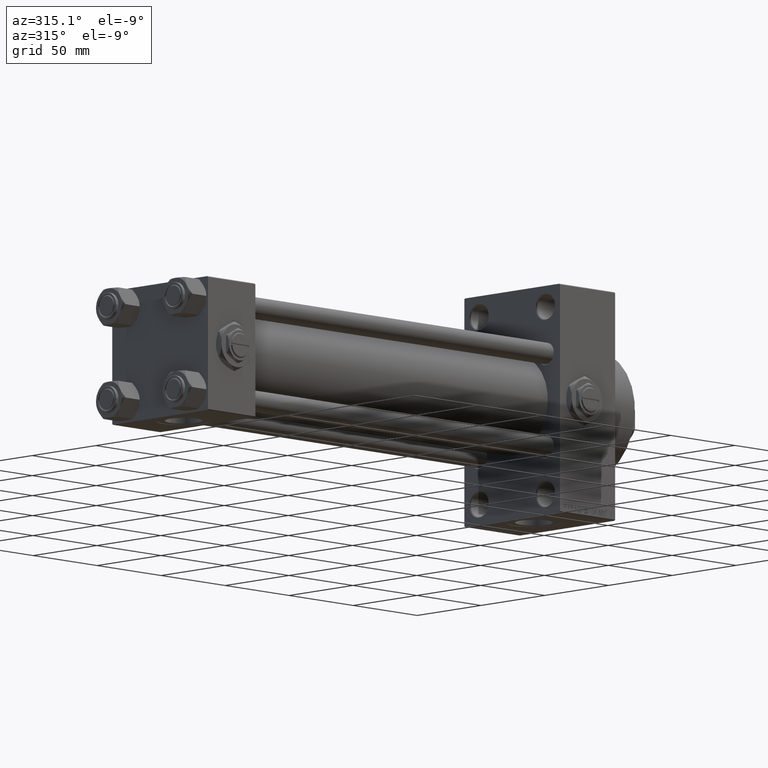
[diagram: clean part render]
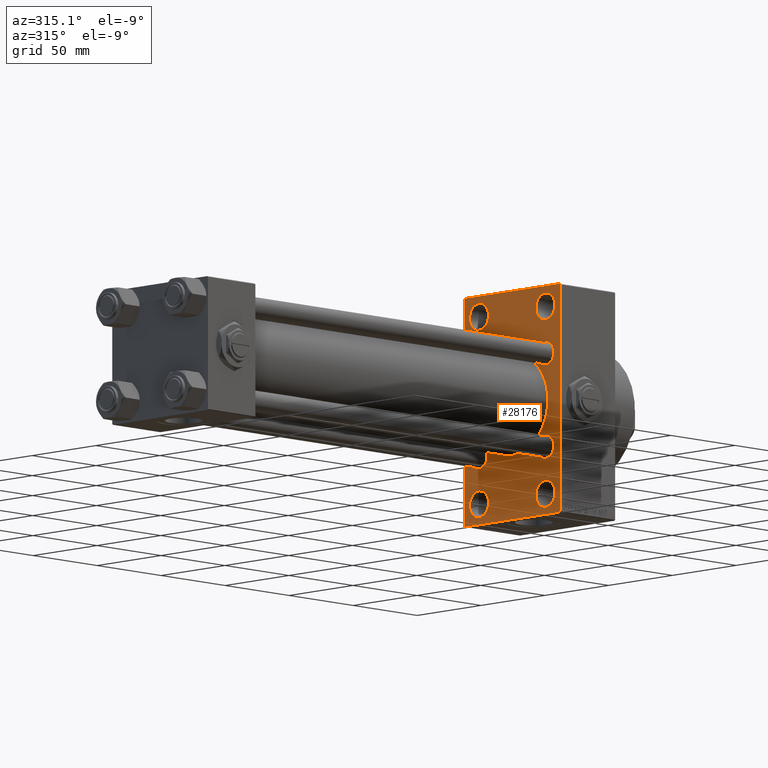
[diagram: same view with one face highlighted and labeled with its STEP entity id]
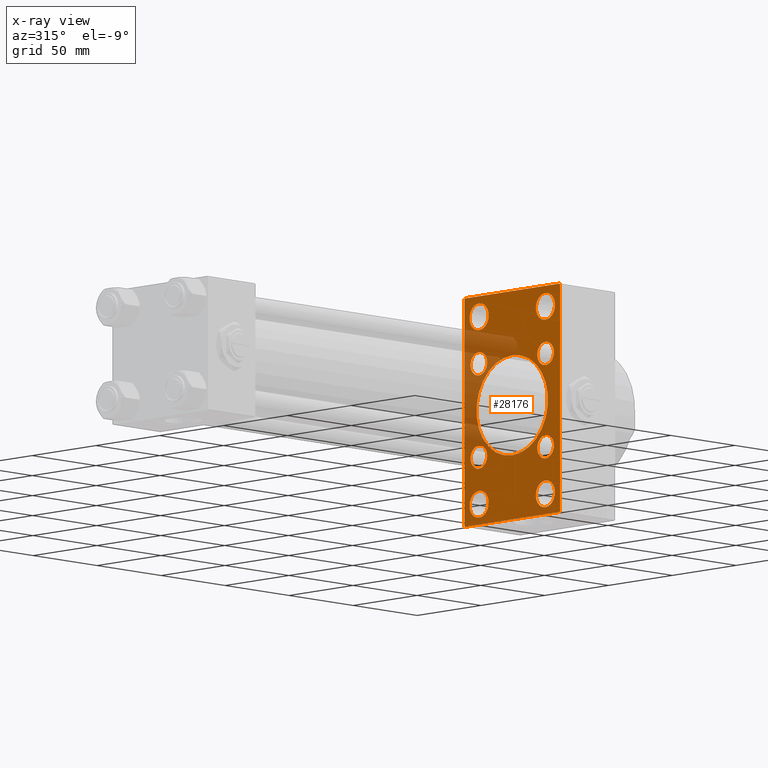
[diagram: x-ray of the same camera — body ghosted, the highlighted face saturated]
A machine part, auxiliary view. The second image highlights one B-rep face of the part: STEP entity #28176.
The next image is the same camera in x-ray: the body ghosted, the highlighted face saturated — about 19% of this face is hidden behind the body in this view.
In plain terms, the highlighted planar face has unit normal (-1, 0, 0).
Its self-contained STEP definition (entity closure, byte-faithful):
#104 = DIRECTION ( 'NONE',  ( 0.000000000000000000, 0.000000000000000000, 1.000000000000000000 ) ) ;
#117 = ORIENTED_EDGE ( 'NONE', *, *, #19751, .T. ) ;
#156 = CARTESIAN_POINT ( 'NONE',  ( 274.9999999999999432, 0.000000000000000000, 0.000000000000000000 ) ) ;
#167 = AXIS2_PLACEMENT_3D ( 'NONE', #35283, #16083, #43499 ) ;
#449 = DIRECTION ( 'NONE',  ( 0.000000000000000000, -0.7071067811865574537, 0.7071067811865376918 ) ) ;
#807 = EDGE_CURVE ( 'NONE', #2103, #23211, #43280, .T. ) ;
#819 = CARTESIAN_POINT ( 'NONE',  ( 274.9999999999999432, -26.14999999999999147, 19.65000000000000213 ) ) ;
#1534 = CARTESIAN_POINT ( 'NONE',  ( 274.9999999999999432, -37.49999999999999289, -63.49999999999997158 ) ) ;
#1535 = ORIENTED_EDGE ( 'NONE', *, *, #807, .T. ) ;
#1751 = CARTESIAN_POINT ( 'NONE',  ( 274.9999999999999432, -25.99999999999999645, 59.99999999999995026 ) ) ;
#2103 = VERTEX_POINT ( 'NONE', #41410 ) ;
#2328 = CIRCLE ( 'NONE', #3961, 6.500000000000008882 ) ;
#2330 = DIRECTION ( 'NONE',  ( 0.000000000000000000, 0.7071067811865474617, -0.7071067811865474617 ) ) ;
#2455 = CARTESIAN_POINT ( 'NONE',  ( 274.9999999999999432, -25.99999999999999645, 52.50000000000000000 ) ) ;
#2569 = VECTOR ( 'NONE', #6731, 1000.000000000000000 ) ;
#2806 = CARTESIAN_POINT ( 'NONE',  ( 274.9999999999999432, 26.00000000000000000, -52.49999999999999289 ) ) ;
#2965 = DIRECTION ( 'NONE',  ( 1.000000000000000000, -0.000000000000000000, 0.000000000000000000 ) ) ;
#3232 = FACE_OUTER_BOUND ( 'NONE', #40252, .T. ) ;
#3281 = CARTESIAN_POINT ( 'NONE',  ( 274.9999999999999432, 8.269258236473784371E-16, -28.00000000000000000 ) ) ;
#3523 = EDGE_LOOP ( 'NONE', ( #41453, #29214 ) ) ;
#3725 = FACE_BOUND ( 'NONE', #35014, .T. ) ;
#3802 = DIRECTION ( 'NONE',  ( 1.000000000000000000, -0.000000000000000000, 0.000000000000000000 ) ) ;
#3961 = AXIS2_PLACEMENT_3D ( 'NONE', #11222, #7379, #29934 ) ;
#3973 = FACE_BOUND ( 'NONE', #16193, .T. ) ;
#3993 = AXIS2_PLACEMENT_3D ( 'NONE', #11677, #46044, #11419 ) ;
#4295 = EDGE_CURVE ( 'NONE', #25023, #26377, #16241, .T. ) ;
#4340 = CIRCLE ( 'NONE', #30528, 6.500000000000008882 ) ;
#4645 = DIRECTION ( 'NONE',  ( -0.000000000000000000, -0.7071067811865573427, -0.7071067811865378028 ) ) ;
#6731 = DIRECTION ( 'NONE',  ( 0.000000000000000000, -5.421010862427522170E-17, -1.000000000000000000 ) ) ;
#7378 = CARTESIAN_POINT ( 'NONE',  ( 274.9999999999999432, -25.99999999999999645, -52.49999999999999289 ) ) ;
#7379 = DIRECTION ( 'NONE',  ( 1.000000000000000000, -0.000000000000000000, 0.000000000000000000 ) ) ;
#7446 = DIRECTION ( 'NONE',  ( 0.000000000000000000, 0.000000000000000000, 1.000000000000000000 ) ) ;
#7473 = LINE ( 'NONE', #26947, #16564 ) ;
#7510 = CARTESIAN_POINT ( 'NONE',  ( 274.9999999999999432, 26.14999999999999858, -26.15000000000000213 ) ) ;
#7557 = FACE_BOUND ( 'NONE', #25975, .T. ) ;
#7705 = CARTESIAN_POINT ( 'NONE',  ( 274.9999999999999432, -2.602085213965210642E-15, 28.00000000000000000 ) ) ;
#7709 = ORIENTED_EDGE ( 'NONE', *, *, #15734, .T. ) ;
#7754 = EDGE_CURVE ( 'NONE', #18577, #33067, #35889, .T. ) ;
#7938 = CARTESIAN_POINT ( 'NONE',  ( 274.9999999999999432, 36.99999999999999289, -64.00000000000000000 ) ) ;
#8125 = VERTEX_POINT ( 'NONE', #20908 ) ;
#8350 = CIRCLE ( 'NONE', #37003, 7.499999999999951150 ) ;
#8600 = ORIENTED_EDGE ( 'NONE', *, *, #41148, .T. ) ;
#9105 = VERTEX_POINT ( 'NONE', #33753 ) ;
#9122 = VERTEX_POINT ( 'NONE', #3281 ) ;
#9358 = CARTESIAN_POINT ( 'NONE',  ( 274.9999999999999432, -25.99999999999999645, 45.00000000000004974 ) ) ;
#9504 = CARTESIAN_POINT ( 'NONE',  ( 274.9999999999999432, -26.14999999999999147, -32.65000000000001990 ) ) ;
#9812 = EDGE_CURVE ( 'NONE', #25342, #9105, #16492, .T. ) ;
#10143 = ORIENTED_EDGE ( 'NONE', *, *, #30224, .T. ) ;
#10214 = CIRCLE ( 'NONE', #35556, 7.499999999999951150 ) ;
#10293 = EDGE_LOOP ( 'NONE', ( #50003, #44971 ) ) ;
#10776 = DIRECTION ( 'NONE',  ( 1.000000000000000000, -0.000000000000000000, 0.000000000000000000 ) ) ;
#11026 = CARTESIAN_POINT ( 'NONE',  ( 274.9999999999999432, -26.14999999999999147, 26.15000000000000924 ) ) ;
#11153 = FACE_BOUND ( 'NONE', #33610, .T. ) ;
#11222 = CARTESIAN_POINT ( 'NONE',  ( 274.9999999999999432, 26.14999999999999858, 26.15000000000000213 ) ) ;
#11374 = DIRECTION ( 'NONE',  ( 0.000000000000000000, -1.000000000000000000, -1.850371707708594563E-16 ) ) ;
#11419 = DIRECTION ( 'NONE',  ( 0.000000000000000000, 0.000000000000000000, 1.000000000000000000 ) ) ;
#11677 = CARTESIAN_POINT ( 'NONE',  ( 274.9999999999999432, -26.14999999999999147, -26.15000000000000924 ) ) ;
#11802 = CARTESIAN_POINT ( 'NONE',  ( 274.9999999999999432, 26.00000000000000000, 52.49999999999999289 ) ) ;
#11904 = ORIENTED_EDGE ( 'NONE', *, *, #44488, .F. ) ;
#12697 = VERTEX_POINT ( 'NONE', #7705 ) ;
#12789 = VERTEX_POINT ( 'NONE', #13063 ) ;
#13063 = CARTESIAN_POINT ( 'NONE',  ( 274.9999999999999432, -25.99999999999999645, -59.99999999999994316 ) ) ;
#13368 = VERTEX_POINT ( 'NONE', #23006 ) ;
#13414 = EDGE_CURVE ( 'NONE', #12789, #40739, #24753, .T. ) ;
#13419 = EDGE_CURVE ( 'NONE', #22815, #48761, #27096, .T. ) ;
#14644 = AXIS2_PLACEMENT_3D ( 'NONE', #27226, #43641, #104 ) ;
#14682 = LINE ( 'NONE', #41344, #2569 ) ;
#14781 = VECTOR ( 'NONE', #4645, 1000.000000000000000 ) ;
#14880 = DIRECTION ( 'NONE',  ( 0.000000000000000000, 0.000000000000000000, 1.000000000000000000 ) ) ;
#14951 = VERTEX_POINT ( 'NONE', #28438 ) ;
#15095 = CIRCLE ( 'NONE', #39634, 7.499999999999951150 ) ;
#15361 = DIRECTION ( 'NONE',  ( 1.000000000000000000, -0.000000000000000000, 0.000000000000000000 ) ) ;
#15513 = FACE_BOUND ( 'NONE', #38030, .T. ) ;
#15616 = DIRECTION ( 'NONE',  ( 0.000000000000000000, 0.000000000000000000, 1.000000000000000000 ) ) ;
#15624 = VERTEX_POINT ( 'NONE', #9358 ) ;
#15734 = EDGE_CURVE ( 'NONE', #9105, #25342, #46754, .T. ) ;
#15765 = DIRECTION ( 'NONE',  ( -1.000000000000000000, 0.000000000000000000, -0.000000000000000000 ) ) ;
#15831 = ORIENTED_EDGE ( 'NONE', *, *, #45462, .T. ) ;
#16076 = CIRCLE ( 'NONE', #21014, 6.500000000000008882 ) ;
#16083 = DIRECTION ( 'NONE',  ( 1.000000000000000000, 0.000000000000000000, 0.000000000000000000 ) ) ;
#16193 = EDGE_LOOP ( 'NONE', ( #7709, #39949 ) ) ;
#16241 = CIRCLE ( 'NONE', #14644, 7.499999999999951150 ) ;
#16492 = CIRCLE ( 'NONE', #36085, 6.500000000000008882 ) ;
#16564 = VECTOR ( 'NONE', #50305, 1000.000000000000000 ) ;
#16623 = VERTEX_POINT ( 'NONE', #38052 ) ;
#16683 = CARTESIAN_POINT ( 'NONE',  ( 274.9999999999999432, 37.49999999999999289, -63.50000000000001421 ) ) ;
#16873 = ORIENTED_EDGE ( 'NONE', *, *, #34218, .T. ) ;
#17442 = VECTOR ( 'NONE', #449, 999.9999999999998863 ) ;
#17450 = CARTESIAN_POINT ( 'NONE',  ( 274.9999999999999432, 50.49999999999996447, 50.49999999999996447 ) ) ;
#17516 = CARTESIAN_POINT ( 'NONE',  ( 274.9999999999999432, 26.00000000000000000, 59.99999999999994316 ) ) ;
#18496 = CARTESIAN_POINT ( 'NONE',  ( 274.9999999999999432, -26.14999999999999147, 26.15000000000000924 ) ) ;
#18577 = VERTEX_POINT ( 'NONE', #16683 ) ;
#18904 = VERTEX_POINT ( 'NONE', #1751 ) ;
#18964 = EDGE_CURVE ( 'NONE', #33067, #48905, #34692, .T. ) ;
#19196 = AXIS2_PLACEMENT_3D ( 'NONE', #30473, #15361, #30976 ) ;
#19326 = VERTEX_POINT ( 'NONE', #37221 ) ;
#19610 = FACE_BOUND ( 'NONE', #37452, .T. ) ;
#19625 = EDGE_CURVE ( 'NONE', #23907, #13368, #21788, .T. ) ;
#19751 = EDGE_CURVE ( 'NONE', #19326, #8125, #4340, .T. ) ;
#19865 = VECTOR ( 'NONE', #11374, 1000.000000000000000 ) ;
#20086 = EDGE_CURVE ( 'NONE', #48905, #37568, #32436, .T. ) ;
#20733 = DIRECTION ( 'NONE',  ( 0.000000000000000000, 0.000000000000000000, 1.000000000000000000 ) ) ;
#20841 = EDGE_CURVE ( 'NONE', #23211, #2103, #39568, .T. ) ;
#20908 = CARTESIAN_POINT ( 'NONE',  ( 274.9999999999999432, 26.14999999999999858, 32.65000000000001990 ) ) ;
#21014 = AXIS2_PLACEMENT_3D ( 'NONE', #33656, #25462, #42131 ) ;
#21664 = CARTESIAN_POINT ( 'NONE',  ( 274.9999999999999432, -25.99999999999999645, -45.00000000000004263 ) ) ;
#21788 = LINE ( 'NONE', #17450, #39541 ) ;
#22160 = DIRECTION ( 'NONE',  ( 0.000000000000000000, 0.000000000000000000, 1.000000000000000000 ) ) ;
#22220 = CIRCLE ( 'NONE', #167, 28.00000000000000000 ) ;
#22531 = EDGE_CURVE ( 'NONE', #14951, #49898, #35561, .T. ) ;
#22815 = VERTEX_POINT ( 'NONE', #47838 ) ;
#23006 = CARTESIAN_POINT ( 'NONE',  ( 274.9999999999999432, 37.50000000000000000, 63.49999999999992895 ) ) ;
#23031 = EDGE_CURVE ( 'NONE', #15624, #18904, #15095, .T. ) ;
#23053 = CARTESIAN_POINT ( 'NONE',  ( 274.9999999999999432, 26.00000000000000000, -59.99999999999994316 ) ) ;
#23211 = VERTEX_POINT ( 'NONE', #9504 ) ;
#23293 = ORIENTED_EDGE ( 'NONE', *, *, #23031, .T. ) ;
#23411 = CARTESIAN_POINT ( 'NONE',  ( 274.9999999999999432, 37.49999999999999289, -64.00000000000000000 ) ) ;
#23756 = EDGE_CURVE ( 'NONE', #12697, #9122, #29855, .T. ) ;
#23907 = VERTEX_POINT ( 'NONE', #31877 ) ;
#24102 = CARTESIAN_POINT ( 'NONE',  ( 274.9999999999999432, 50.49999999999948841, -50.50000000000088107 ) ) ;
#24492 = CARTESIAN_POINT ( 'NONE',  ( 274.9999999999999432, -50.49999999999945999, -50.50000000000086686 ) ) ;
#24683 = ORIENTED_EDGE ( 'NONE', *, *, #13419, .T. ) ;
#24751 = VECTOR ( 'NONE', #29109, 1000.000000000000000 ) ;
#24753 = CIRCLE ( 'NONE', #31299, 7.499999999999951150 ) ;
#25023 = VERTEX_POINT ( 'NONE', #17516 ) ;
#25342 = VERTEX_POINT ( 'NONE', #819 ) ;
#25354 = CARTESIAN_POINT ( 'NONE',  ( 274.9999999999999432, 26.14999999999999858, -32.65000000000001279 ) ) ;
#25462 = DIRECTION ( 'NONE',  ( 1.000000000000000000, -0.000000000000000000, 0.000000000000000000 ) ) ;
#25975 = EDGE_LOOP ( 'NONE', ( #1535, #43058 ) ) ;
#26377 = VERTEX_POINT ( 'NONE', #43055 ) ;
#26524 = FACE_BOUND ( 'NONE', #3523, .T. ) ;
#26558 = AXIS2_PLACEMENT_3D ( 'NONE', #37547, #44501, #32441 ) ;
#26695 = CARTESIAN_POINT ( 'NONE',  ( 274.9999999999999432, -36.99999999999993605, -64.00000000000001421 ) ) ;
#26899 = EDGE_CURVE ( 'NONE', #40739, #12789, #10214, .T. ) ;
#26947 = CARTESIAN_POINT ( 'NONE',  ( 274.9999999999999432, -37.49999999999999289, 63.99999999999997158 ) ) ;
#27096 = LINE ( 'NONE', #34290, #37841 ) ;
#27111 = AXIS2_PLACEMENT_3D ( 'NONE', #18496, #49270, #29492 ) ;
#27226 = CARTESIAN_POINT ( 'NONE',  ( 274.9999999999999432, 26.00000000000000000, 52.49999999999999289 ) ) ;
#27487 = DIRECTION ( 'NONE',  ( 0.000000000000000000, 0.000000000000000000, 1.000000000000000000 ) ) ;
#28176 = ADVANCED_FACE ( 'NONE', ( #15513, #34216, #3725, #11153, #3973, #50383, #19610, #7557, #26524, #3232 ), #50628, .T. ) ;
#28438 = CARTESIAN_POINT ( 'NONE',  ( 274.9999999999999432, 26.00000000000000000, -45.00000000000004263 ) ) ;
#28653 = CARTESIAN_POINT ( 'NONE',  ( 274.9999999999999432, -26.14999999999999147, -26.15000000000000924 ) ) ;
#28806 = AXIS2_PLACEMENT_3D ( 'NONE', #11802, #38722, #7446 ) ;
#29109 = DIRECTION ( 'NONE',  ( 0.000000000000000000, -1.000000000000000000, -1.850371707708594563E-16 ) ) ;
#29214 = ORIENTED_EDGE ( 'NONE', *, *, #45192, .T. ) ;
#29349 = CARTESIAN_POINT ( 'NONE',  ( 274.9999999999999432, 37.50000000000000000, 63.99999999999998579 ) ) ;
#29436 = ORIENTED_EDGE ( 'NONE', *, *, #30477, .T. ) ;
#29492 = DIRECTION ( 'NONE',  ( 0.000000000000000000, 0.000000000000000000, 1.000000000000000000 ) ) ;
#29855 = CIRCLE ( 'NONE', #26558, 28.00000000000000000 ) ;
#29934 = DIRECTION ( 'NONE',  ( 0.000000000000000000, 0.000000000000000000, 1.000000000000000000 ) ) ;
#30224 = EDGE_CURVE ( 'NONE', #49898, #14951, #34106, .T. ) ;
#30375 = DIRECTION ( 'NONE',  ( 0.000000000000000000, 0.000000000000000000, 1.000000000000000000 ) ) ;
#30473 = CARTESIAN_POINT ( 'NONE',  ( 274.9999999999999432, 26.00000000000000000, -52.49999999999999289 ) ) ;
#30477 = EDGE_CURVE ( 'NONE', #16623, #47854, #16076, .T. ) ;
#30479 = CARTESIAN_POINT ( 'NONE',  ( 274.9999999999999432, 26.14999999999999858, 26.15000000000000213 ) ) ;
#30528 = AXIS2_PLACEMENT_3D ( 'NONE', #30479, #35078, #15616 ) ;
#30598 = EDGE_CURVE ( 'NONE', #47854, #16623, #30799, .T. ) ;
#30695 = DIRECTION ( 'NONE',  ( -0.000000000000000000, 0.7071067811865524577, 0.7071067811865426878 ) ) ;
#30799 = CIRCLE ( 'NONE', #46378, 6.500000000000008882 ) ;
#30976 = DIRECTION ( 'NONE',  ( 0.000000000000000000, 0.000000000000000000, 1.000000000000000000 ) ) ;
#31128 = DIRECTION ( 'NONE',  ( -0.000000000000000000, 0.000000000000000000, 1.000000000000000000 ) ) ;
#31299 = AXIS2_PLACEMENT_3D ( 'NONE', #7378, #3802, #41741 ) ;
#31877 = CARTESIAN_POINT ( 'NONE',  ( 274.9999999999999432, 36.99999999999994316, 63.99999999999998579 ) ) ;
#32436 = LINE ( 'NONE', #24492, #17442 ) ;
#32441 = DIRECTION ( 'NONE',  ( 0.000000000000000000, 0.000000000000000000, -1.000000000000000000 ) ) ;
#32766 = ORIENTED_EDGE ( 'NONE', *, *, #46168, .T. ) ;
#33067 = VERTEX_POINT ( 'NONE', #7938 ) ;
#33610 = EDGE_LOOP ( 'NONE', ( #38451, #32766 ) ) ;
#33656 = CARTESIAN_POINT ( 'NONE',  ( 274.9999999999999432, 26.14999999999999858, -26.15000000000000213 ) ) ;
#33753 = CARTESIAN_POINT ( 'NONE',  ( 274.9999999999999432, -26.14999999999999147, 32.65000000000001990 ) ) ;
#34106 = CIRCLE ( 'NONE', #36556, 7.499999999999951150 ) ;
#34216 = FACE_BOUND ( 'NONE', #10293, .T. ) ;
#34218 = EDGE_CURVE ( 'NONE', #8125, #19326, #2328, .T. ) ;
#34290 = CARTESIAN_POINT ( 'NONE',  ( 274.9999999999999432, -50.49999999999969447, 50.50000000000039080 ) ) ;
#34692 = LINE ( 'NONE', #23411, #19865 ) ;
#34795 = DIRECTION ( 'NONE',  ( 0.000000000000000000, 0.000000000000000000, 1.000000000000000000 ) ) ;
#35014 = EDGE_LOOP ( 'NONE', ( #43862, #10143 ) ) ;
#35078 = DIRECTION ( 'NONE',  ( 1.000000000000000000, -0.000000000000000000, 0.000000000000000000 ) ) ;
#35283 = CARTESIAN_POINT ( 'NONE',  ( 274.9999999999999432, -2.602085213965210642E-15, 0.000000000000000000 ) ) ;
#35556 = AXIS2_PLACEMENT_3D ( 'NONE', #41854, #36806, #42369 ) ;
#35561 = CIRCLE ( 'NONE', #19196, 7.499999999999951150 ) ;
#35889 = LINE ( 'NONE', #24102, #14781 ) ;
#36085 = AXIS2_PLACEMENT_3D ( 'NONE', #11026, #10776, #14880 ) ;
#36129 = ORIENTED_EDGE ( 'NONE', *, *, #18964, .T. ) ;
#36556 = AXIS2_PLACEMENT_3D ( 'NONE', #2806, #37889, #34795 ) ;
#36806 = DIRECTION ( 'NONE',  ( 1.000000000000000000, -0.000000000000000000, 0.000000000000000000 ) ) ;
#37003 = AXIS2_PLACEMENT_3D ( 'NONE', #46036, #42438, #30375 ) ;
#37221 = CARTESIAN_POINT ( 'NONE',  ( 274.9999999999999432, 26.14999999999999858, 19.64999999999999147 ) ) ;
#37452 = EDGE_LOOP ( 'NONE', ( #29436, #38064 ) ) ;
#37536 = ORIENTED_EDGE ( 'NONE', *, *, #42536, .F. ) ;
#37547 = CARTESIAN_POINT ( 'NONE',  ( 274.9999999999999432, -2.602085213965210642E-15, 0.000000000000000000 ) ) ;
#37568 = VERTEX_POINT ( 'NONE', #1534 ) ;
#37841 = VECTOR ( 'NONE', #30695, 1000.000000000000000 ) ;
#37889 = DIRECTION ( 'NONE',  ( 1.000000000000000000, -0.000000000000000000, 0.000000000000000000 ) ) ;
#38030 = EDGE_LOOP ( 'NONE', ( #15831, #23293 ) ) ;
#38052 = CARTESIAN_POINT ( 'NONE',  ( 274.9999999999999432, 26.14999999999999858, -19.64999999999999503 ) ) ;
#38064 = ORIENTED_EDGE ( 'NONE', *, *, #30598, .T. ) ;
#38167 = EDGE_LOOP ( 'NONE', ( #16873, #117 ) ) ;
#38451 = ORIENTED_EDGE ( 'NONE', *, *, #4295, .T. ) ;
#38722 = DIRECTION ( 'NONE',  ( 1.000000000000000000, -0.000000000000000000, 0.000000000000000000 ) ) ;
#39541 = VECTOR ( 'NONE', #2330, 1000.000000000000114 ) ;
#39568 = CIRCLE ( 'NONE', #46128, 6.500000000000008882 ) ;
#39634 = AXIS2_PLACEMENT_3D ( 'NONE', #2455, #2965, #22160 ) ;
#39666 = ORIENTED_EDGE ( 'NONE', *, *, #19625, .T. ) ;
#39949 = ORIENTED_EDGE ( 'NONE', *, *, #9812, .T. ) ;
#40252 = EDGE_LOOP ( 'NONE', ( #36129, #44787, #37536, #24683, #11904, #39666, #8600, #47767 ) ) ;
#40739 = VERTEX_POINT ( 'NONE', #21664 ) ;
#41148 = EDGE_CURVE ( 'NONE', #13368, #18577, #14682, .T. ) ;
#41344 = CARTESIAN_POINT ( 'NONE',  ( 274.9999999999999432, 37.50000000000000000, 63.99999999999998579 ) ) ;
#41410 = CARTESIAN_POINT ( 'NONE',  ( 274.9999999999999432, -26.14999999999999147, -19.65000000000000213 ) ) ;
#41423 = LINE ( 'NONE', #29349, #24751 ) ;
#41453 = ORIENTED_EDGE ( 'NONE', *, *, #23756, .T. ) ;
#41741 = DIRECTION ( 'NONE',  ( 0.000000000000000000, 0.000000000000000000, 1.000000000000000000 ) ) ;
#41854 = CARTESIAN_POINT ( 'NONE',  ( 274.9999999999999432, -25.99999999999999645, -52.49999999999999289 ) ) ;
#42131 = DIRECTION ( 'NONE',  ( 0.000000000000000000, 0.000000000000000000, 1.000000000000000000 ) ) ;
#42166 = AXIS2_PLACEMENT_3D ( 'NONE', #156, #15765, #31128 ) ;
#42369 = DIRECTION ( 'NONE',  ( 0.000000000000000000, 0.000000000000000000, 1.000000000000000000 ) ) ;
#42438 = DIRECTION ( 'NONE',  ( 1.000000000000000000, -0.000000000000000000, 0.000000000000000000 ) ) ;
#42536 = EDGE_CURVE ( 'NONE', #22815, #37568, #7473, .T. ) ;
#43055 = CARTESIAN_POINT ( 'NONE',  ( 274.9999999999999432, 26.00000000000000000, 45.00000000000004263 ) ) ;
#43058 = ORIENTED_EDGE ( 'NONE', *, *, #20841, .T. ) ;
#43280 = CIRCLE ( 'NONE', #3993, 6.500000000000008882 ) ;
#43499 = DIRECTION ( 'NONE',  ( 0.000000000000000000, 0.000000000000000000, -1.000000000000000000 ) ) ;
#43641 = DIRECTION ( 'NONE',  ( 1.000000000000000000, -0.000000000000000000, 0.000000000000000000 ) ) ;
#43862 = ORIENTED_EDGE ( 'NONE', *, *, #22531, .T. ) ;
#44048 = DIRECTION ( 'NONE',  ( 1.000000000000000000, -0.000000000000000000, 0.000000000000000000 ) ) ;
#44488 = EDGE_CURVE ( 'NONE', #23907, #48761, #41423, .T. ) ;
#44501 = DIRECTION ( 'NONE',  ( 1.000000000000000000, 0.000000000000000000, 0.000000000000000000 ) ) ;
#44787 = ORIENTED_EDGE ( 'NONE', *, *, #20086, .T. ) ;
#44971 = ORIENTED_EDGE ( 'NONE', *, *, #13414, .T. ) ;
#45192 = EDGE_CURVE ( 'NONE', #9122, #12697, #22220, .T. ) ;
#45462 = EDGE_CURVE ( 'NONE', #18904, #15624, #8350, .T. ) ;
#46036 = CARTESIAN_POINT ( 'NONE',  ( 274.9999999999999432, -25.99999999999999645, 52.50000000000000000 ) ) ;
#46044 = DIRECTION ( 'NONE',  ( 1.000000000000000000, -0.000000000000000000, 0.000000000000000000 ) ) ;
#46128 = AXIS2_PLACEMENT_3D ( 'NONE', #28653, #44048, #20733 ) ;
#46168 = EDGE_CURVE ( 'NONE', #26377, #25023, #48487, .T. ) ;
#46378 = AXIS2_PLACEMENT_3D ( 'NONE', #7510, #50585, #27487 ) ;
#46754 = CIRCLE ( 'NONE', #27111, 6.500000000000008882 ) ;
#47767 = ORIENTED_EDGE ( 'NONE', *, *, #7754, .T. ) ;
#47838 = CARTESIAN_POINT ( 'NONE',  ( 274.9999999999999432, -37.49999999999999289, 63.49999999999991473 ) ) ;
#47854 = VERTEX_POINT ( 'NONE', #25354 ) ;
#48036 = CARTESIAN_POINT ( 'NONE',  ( 274.9999999999999432, -36.99999999999992895, 63.99999999999997158 ) ) ;
#48487 = CIRCLE ( 'NONE', #28806, 7.499999999999951150 ) ;
#48761 = VERTEX_POINT ( 'NONE', #48036 ) ;
#48905 = VERTEX_POINT ( 'NONE', #26695 ) ;
#49270 = DIRECTION ( 'NONE',  ( 1.000000000000000000, -0.000000000000000000, 0.000000000000000000 ) ) ;
#49898 = VERTEX_POINT ( 'NONE', #23053 ) ;
#50003 = ORIENTED_EDGE ( 'NONE', *, *, #26899, .T. ) ;
#50305 = DIRECTION ( 'NONE',  ( 0.000000000000000000, 0.000000000000000000, -1.000000000000000000 ) ) ;
#50383 = FACE_BOUND ( 'NONE', #38167, .T. ) ;
#50585 = DIRECTION ( 'NONE',  ( 1.000000000000000000, -0.000000000000000000, 0.000000000000000000 ) ) ;
#50628 = PLANE ( 'NONE',  #42166 ) ;